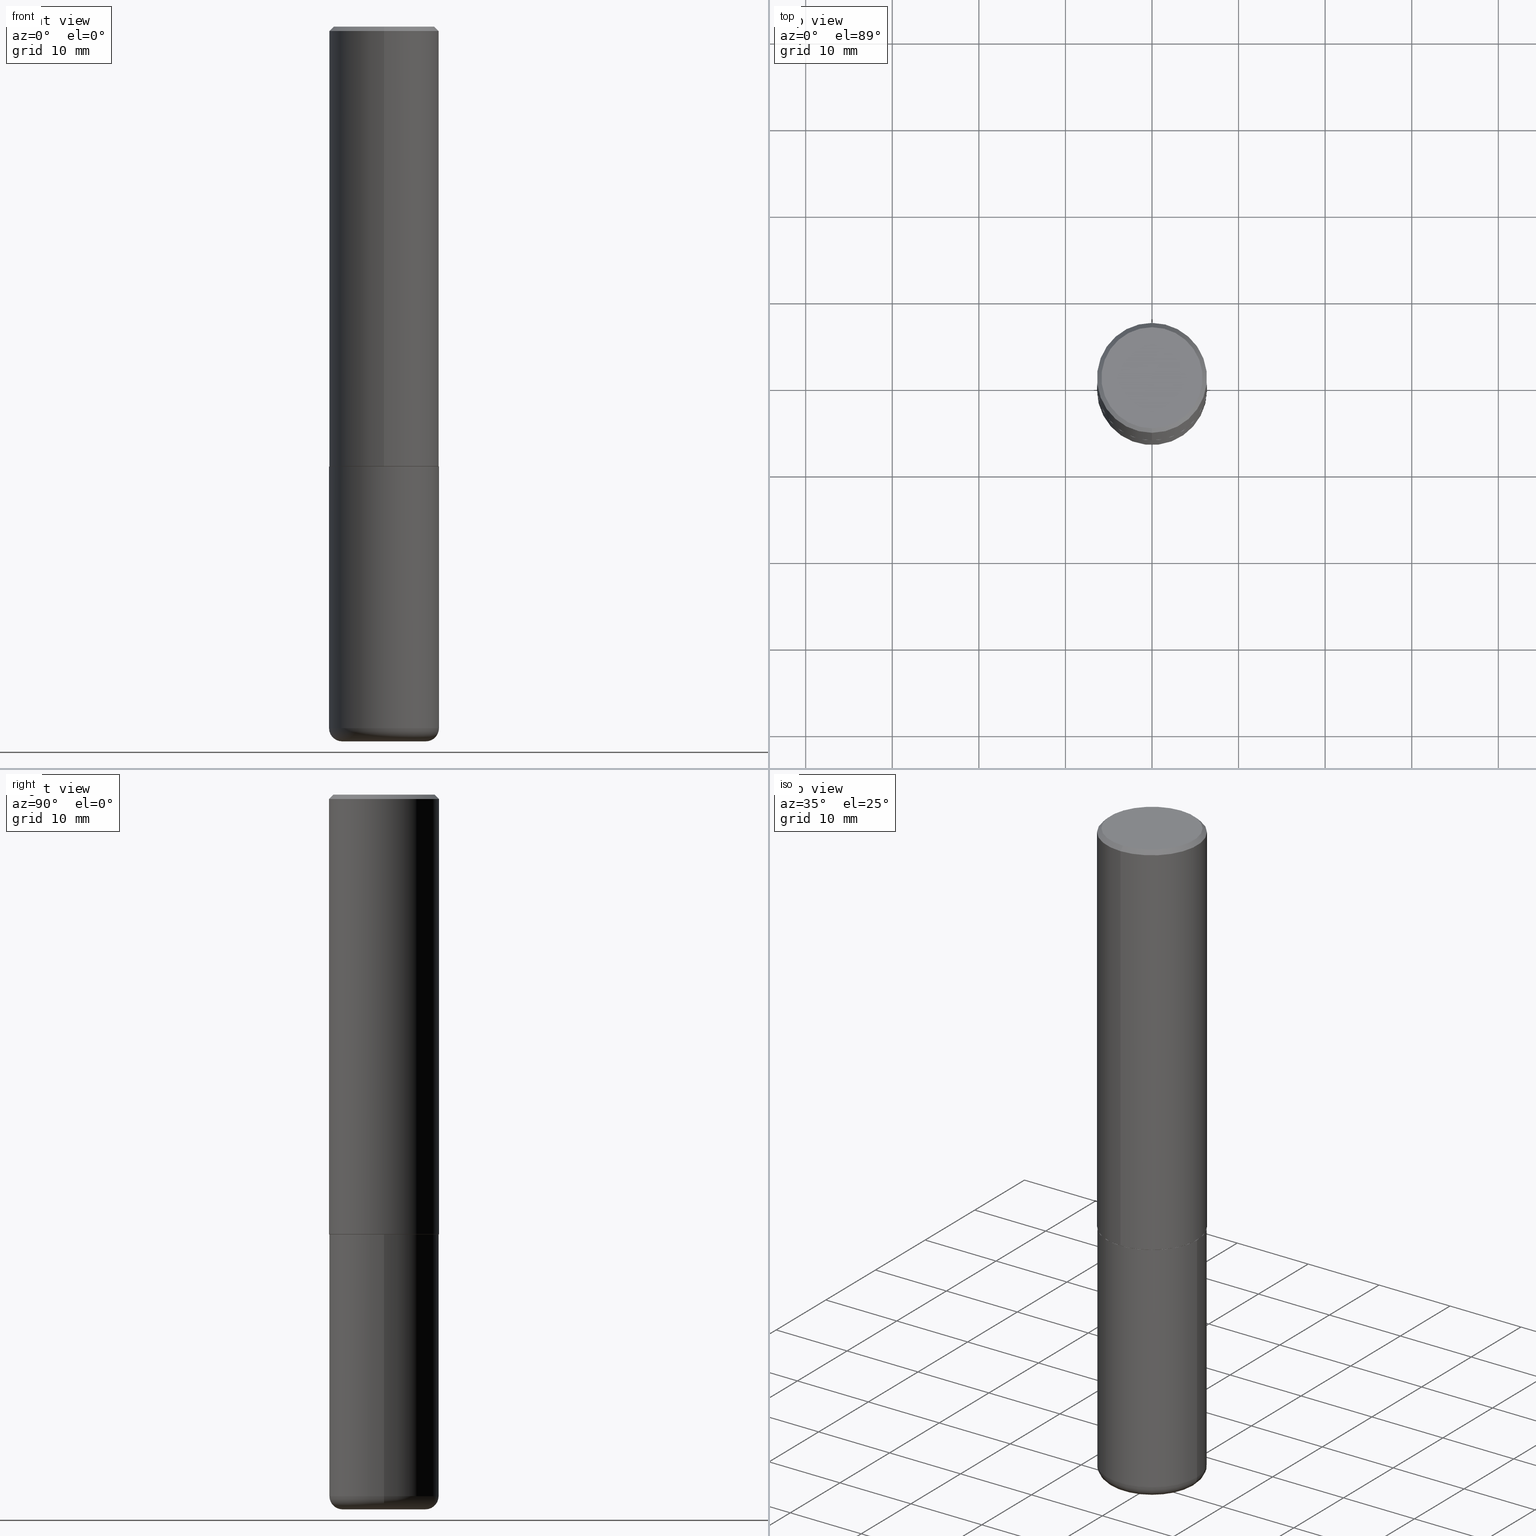
[diagram: canonical four-view strip — front | top / right | iso, engineering-drawing reading convention]
A machine part, canonical four-view strip (front | top / right | iso — engineering-drawing reading convention). The complete STEP part file that produces these views, byte-faithful:
ISO-10303-21;
HEADER;
FILE_DESCRIPTION (( 'STEP AP203' ),
    '1' );
FILE_NAME ('77349.STEP',
    '2024-05-02T19:31:04',
    ( '' ),
    ( '' ),
    'SwSTEP 2.0',
    'SolidWorks 2023',
    '' );
FILE_SCHEMA (( 'CONFIG_CONTROL_DESIGN' ));
ENDSEC;

DATA;
#1 = UNCERTAINTY_MEASURE_WITH_UNIT (LENGTH_MEASURE( 1.000000000000000082E-05 ), #405, 'distance_accuracy_value', 'NONE');
#2 = CARTESIAN_POINT ( 'NONE',  ( 4.890937612370273194E-29, -6.982962677686291165E-15, -2.000000000000000000 ) ) ;
#3 = AXIS2_PLACEMENT_3D ( 'NONE', #361, #229, #287 ) ;
#4 = DIRECTION ( 'NONE',  ( 1.000000000000000000, -6.982962677686274599E-15, 0.000000000000000000 ) ) ;
#5 = DIRECTION ( 'NONE',  ( -2.444078991372175563E-29, 3.493471632758652550E-15, 1.000000000000000000 ) ) ;
#6 = CARTESIAN_POINT ( 'NONE',  ( 1.769251412042697971E-15, 0.2489999999999930047, -2.000000000000000888 ) ) ;
#7 = EDGE_CURVE ( 'NONE', #148, #216, #196, .T. ) ;
#8 = AXIS2_PLACEMENT_3D ( 'NONE', #364, #324, #199 ) ;
#9 = CARTESIAN_POINT ( 'NONE',  ( 7.801045491730585789E-29, -1.113782547090963453E-14, -3.189999999999999947 ) ) ;
#10 = ADVANCED_FACE ( 'NONE', ( #19 ), #117, .F. ) ;
#11 = MECHANICAL_CONTEXT ( 'NONE', #393, 'mechanical' ) ;
#12 = FACE_OUTER_BOUND ( 'NONE', #412, .T. ) ;
#13 = PERSON_AND_ORGANIZATION ( #339, #155 ) ;
#14 = DIRECTION ( 'NONE',  ( -6.982962677686265133E-15, -1.000000000000000000, 3.500180241882336472E-15 ) ) ;
#15 = CONICAL_SURFACE ( 'NONE', #8, 0.2489999999999999991, 0.7853981633975507526 ) ;
#16 = EDGE_CURVE ( 'NONE', #315, #216, #225, .T. ) ;
#17 = PLANE ( 'NONE',  #47 ) ;
#18 = DIRECTION ( 'NONE',  ( 1.000000000000000000, -6.982962677686266711E-15, 0.000000000000000000 ) ) ;
#19 = FACE_OUTER_BOUND ( 'NONE', #158, .T. ) ;
#20 = PRODUCT_RELATED_PRODUCT_CATEGORY ( 'detail', '', ( #409 ) ) ;
#21 = EDGE_CURVE ( 'NONE', #216, #146, #98, .T. ) ;
#22 = AXIS2_PLACEMENT_3D ( 'NONE', #174, #337, #49 ) ;
#23 = CIRCLE ( 'NONE', #311, 0.2500000000000002776 ) ;
#24 = ORIENTED_EDGE ( 'NONE', *, *, #270, .F. ) ;
#25 = DIRECTION ( 'NONE',  ( -6.982962677686265922E-15, -1.000000000000000000, 3.493471632758652550E-15 ) ) ;
#26 = ORIENTED_EDGE ( 'NONE', *, *, #109, .T. ) ;
#27 = EDGE_LOOP ( 'NONE', ( #93, #123, #61, #345 ) ) ;
#28 = AXIS2_PLACEMENT_3D ( 'NONE', #206, #407, #77 ) ;
#29 = ORIENTED_EDGE ( 'NONE', *, *, #321, .F. ) ;
#30 = CARTESIAN_POINT ( 'NONE',  ( 7.801045491730585789E-29, -1.113782547090963453E-14, -3.189999999999999947 ) ) ;
#31 = DIRECTION ( 'NONE',  ( 1.000000000000000000, -6.982962677686261977E-15, 0.000000000000000000 ) ) ;
#32 = LINE ( 'NONE', #366, #378 ) ;
#33 = DATE_TIME_ROLE ( 'creation_date' ) ;
#34 = VECTOR ( 'NONE', #317, 39.37007874015748143 ) ;
#35 = AXIS2_PLACEMENT_3D ( 'NONE', #2, #130, #372 ) ;
#36 = CARTESIAN_POINT ( 'NONE',  ( 0.000000000000000000, 0.000000000000000000, 0.000000000000000000 ) ) ;
#37 = APPROVAL_STATUS ( 'not_yet_approved' ) ;
#38 = CARTESIAN_POINT ( 'NONE',  ( 4.890937612370273194E-29, -6.982962677686291165E-15, -2.000000000000000000 ) ) ;
#39 = EDGE_CURVE ( 'NONE', #315, #180, #82, .T. ) ;
#40 = PLANE ( 'NONE',  #318 ) ;
#41 = AXIS2_PLACEMENT_3D ( 'NONE', #274, #89, #83 ) ;
#42 = AXIS2_PLACEMENT_3D ( 'NONE', #143, #277, #306 ) ;
#43 = DIRECTION ( 'NONE',  ( 1.000000000000000000, -6.982962677686261977E-15, 0.000000000000000000 ) ) ;
#44 = CARTESIAN_POINT ( 'NONE',  ( -1.745740669421567467E-15, -0.2500000000000001110, 8.733679081896635319E-16 ) ) ;
#45 = DIRECTION ( 'NONE',  ( -2.445468806185136597E-29, 3.491481338843145583E-15, 1.000000000000000000 ) ) ;
#46 = AXIS2_PLACEMENT_3D ( 'NONE', #411, #119, #184 ) ;
#47 = AXIS2_PLACEMENT_3D ( 'NONE', #115, #309, #278 ) ;
#48 = CARTESIAN_POINT ( 'NONE',  ( 0.1899999999999999745, -1.267407726000061289E-14, -3.250000000000000000 ) ) ;
#49 = DIRECTION ( 'NONE',  ( 6.982962677686265133E-15, 1.000000000000000000, -3.500180241882336472E-15 ) ) ;
#50 = ORIENTED_EDGE ( 'NONE', *, *, #16, .F. ) ;
#51 = PRODUCT_DEFINITION_SHAPE ( 'NONE', 'NONE',  #157 ) ;
#52 = ORIENTED_EDGE ( 'NONE', *, *, #78, .T. ) ;
#53 = CIRCLE ( 'NONE', #110, 0.1899999999999999745 ) ;
#54 = EDGE_LOOP ( 'NONE', ( #50, #252, #283, #151 ) ) ;
#55 = EDGE_LOOP ( 'NONE', ( #352, #183 ) ) ;
#56 = EDGE_LOOP ( 'NONE', ( #386, #316, #377, #215 ) ) ;
#57 = ORIENTED_EDGE ( 'NONE', *, *, #270, .T. ) ;
#58 = CARTESIAN_POINT ( 'NONE',  ( -1.646519519465166376E-15, -0.2299999999999997047, 1.115557654912385711E-15 ) ) ;
#59 = ORIENTED_EDGE ( 'NONE', *, *, #235, .F. ) ;
#60 = AXIS2_PLACEMENT_3D ( 'NONE', #142, #402, #210 ) ;
#61 = ORIENTED_EDGE ( 'NONE', *, *, #400, .T. ) ;
#62 = CARTESIAN_POINT ( 'NONE',  ( -1.745740669421519543E-15, -0.2500000000000072720, -1.998999999999999000 ) ) ;
#63 = LOCAL_TIME ( 15, 31, 4.000000000000000000, #363 ) ;
#64 = DIRECTION ( 'NONE',  ( -2.444078991372175563E-29, 3.493471632758652550E-15, 1.000000000000000000 ) ) ;
#65 = LINE ( 'NONE', #133, #370 ) ;
#66 = DATE_AND_TIME ( #296, #293 ) ;
#67 = DIRECTION ( 'NONE',  ( -6.982962677686265922E-15, -1.000000000000000000, 3.278217592397112312E-15 ) ) ;
#68 = CONICAL_SURFACE ( 'NONE', #92, 0.2500000000000000555, 0.7853981633974466137 ) ;
#69 = FACE_OUTER_BOUND ( 'NONE', #56, .T. ) ;
#70 = FACE_OUTER_BOUND ( 'NONE', #55, .T. ) ;
#71 = ADVANCED_FACE ( 'NONE', ( #156 ), #147, .T. ) ;
#72 = CARTESIAN_POINT ( 'NONE',  ( 7.801045491730585789E-29, -1.113782547090963453E-14, -3.189999999999999947 ) ) ;
#73 = DIRECTION ( 'NONE',  ( -6.982962677686265133E-15, -1.000000000000000000, 3.500180241882336472E-15 ) ) ;
#74 =( NAMED_UNIT ( * ) PLANE_ANGLE_UNIT ( ) SI_UNIT ( $, .RADIAN. ) );
#75 = CYLINDRICAL_SURFACE ( 'NONE', #28, 0.2500000000000000000 ) ;
#76 = APPLICATION_PROTOCOL_DEFINITION ( 'international standard', 'config_control_design', 1994, #360 ) ;
#77 = DIRECTION ( 'NONE',  ( 1.000000000000000000, -6.982962677686266711E-15, 4.876176775795935793E-29 ) ) ;
#78 = EDGE_CURVE ( 'NONE', #85, #228, #181, .T. ) ;
#79 = ADVANCED_FACE ( 'NONE', ( #161 ), #387, .T. ) ;
#80 = CYLINDRICAL_SURFACE ( 'NONE', #60, 0.2500000000000000000 ) ;
#81 = ORIENTED_EDGE ( 'NONE', *, *, #16, .T. ) ;
#82 = CIRCLE ( 'NONE', #325, 0.2489999999999999991 ) ;
#83 = DIRECTION ( 'NONE',  ( -6.982962677686265133E-15, -1.000000000000000000, 3.291383124896702687E-15 ) ) ;
#84 = TOROIDAL_SURFACE ( 'NONE', #141, 0.1899999999999999745, 0.05999999999999995615 ) ;
#85 = VERTEX_POINT ( 'NONE', #58 ) ;
#86 = ORIENTED_EDGE ( 'NONE', *, *, #247, .T. ) ;
#87 = ORIENTED_EDGE ( 'NONE', *, *, #125, .F. ) ;
#88 = ORIENTED_EDGE ( 'NONE', *, *, #399, .T. ) ;
#89 = DIRECTION ( 'NONE',  ( -2.444078991372175563E-29, 3.493471632758652550E-15, 1.000000000000000000 ) ) ;
#90 = CALENDAR_DATE ( 2024, 2, 5 ) ;
#91 = CC_DESIGN_PERSON_AND_ORGANIZATION_ASSIGNMENT ( #167, #139, ( #111 ) ) ;
#92 = AXIS2_PLACEMENT_3D ( 'NONE', #164, #127, #200 ) ;
#93 = ORIENTED_EDGE ( 'NONE', *, *, #21, .F. ) ;
#94 = DIRECTION ( 'NONE',  ( -2.445468806185136597E-29, 3.491481338843145583E-15, 1.000000000000000000 ) ) ;
#95 = CC_DESIGN_APPROVAL ( #266, ( #111 ) ) ;
#96 = DIRECTION ( 'NONE',  ( 1.000000000000000000, -6.982962677686265133E-15, 4.883557194083112340E-29 ) ) ;
#97 = COORDINATED_UNIVERSAL_TIME_OFFSET ( 5, 0, .BEHIND. ) ;
#98 = LINE ( 'NONE', #401, #34 ) ;
#99 = CARTESIAN_POINT ( 'NONE',  ( 4.888157982744351127E-29, -6.986943265517304311E-15, -2.000000000000000000 ) ) ;
#100 = FACE_OUTER_BOUND ( 'NONE', #124, .T. ) ;
#101 = DESIGN_CONTEXT ( 'detailed design', #360, 'design' ) ;
#102 = APPROVAL_DATE_TIME ( #66, #289 ) ;
#103 = AXIS2_PLACEMENT_3D ( 'NONE', #36, #298, #367 ) ;
#104 = DIRECTION ( 'NONE',  ( -1.000000000000000000, 6.982962677686265922E-15, -4.876176775795935793E-29 ) ) ;
#105 = CARTESIAN_POINT ( 'NONE',  ( 1.675911042644703182E-15, 0.2299999999999997047, -4.914392961565924424E-16 ) ) ;
#106 = CARTESIAN_POINT ( 'NONE',  ( 4.888157982744351127E-29, -6.986943265517304311E-15, -2.000000000000000000 ) ) ;
#107 = DIRECTION ( 'NONE',  ( -2.444078991372175563E-29, 3.493471632758652550E-15, 1.000000000000000000 ) ) ;
#108 = DIMENSIONAL_EXPONENTS ( 1.000000000000000000, 0.000000000000000000, 0.000000000000000000, 0.000000000000000000, 0.000000000000000000, 0.000000000000000000, 0.000000000000000000 ) ;
#109 = EDGE_CURVE ( 'NONE', #384, #185, #342, .T. ) ;
#110 = AXIS2_PLACEMENT_3D ( 'NONE', #258, #94, #31 ) ;
#111 = PRODUCT_DEFINITION_FORMATION_WITH_SPECIFIED_SOURCE ( 'ANY', '', #409, .NOT_KNOWN. ) ;
#112 = DIRECTION ( 'NONE',  ( -2.445468806185136597E-29, 3.491481338843145583E-15, 1.000000000000000000 ) ) ;
#113 = PERSON_AND_ORGANIZATION ( #339, #155 ) ;
#114 = CC_DESIGN_PERSON_AND_ORGANIZATION_ASSIGNMENT ( #263, #128, ( #157 ) ) ;
#115 = CARTESIAN_POINT ( 'NONE',  ( 1.606081415867839095E-15, 0.2299999999999997047, -6.474688858455407103E-16 ) ) ;
#116 = CONICAL_SURFACE ( 'NONE', #22, 0.2500000000000000555, 0.7853981633974466137 ) ;
#117 = PLANE ( 'NONE',  #46 ) ;
#118 = ORIENTED_EDGE ( 'NONE', *, *, #254, .F. ) ;
#119 = DIRECTION ( 'NONE',  ( -2.444078991372175283E-29, 3.493471632758652550E-15, 1.000000000000000000 ) ) ;
#120 = EDGE_LOOP ( 'NONE', ( #381, #288, #375, #188 ) ) ;
#121 = ADVANCED_FACE ( 'NONE', ( #100 ), #15, .T. ) ;
#122 = EDGE_LOOP ( 'NONE', ( #355, #413 ) ) ;
#123 = ORIENTED_EDGE ( 'NONE', *, *, #159, .T. ) ;
#124 = EDGE_LOOP ( 'NONE', ( #351, #81, #218, #356 ) ) ;
#125 = EDGE_CURVE ( 'NONE', #185, #251, #292, .T. ) ;
#126 = CARTESIAN_POINT ( 'NONE',  ( 0.2500000000000000000, -8.728703347107857054E-15, -2.000000000000000000 ) ) ;
#127 = DIRECTION ( 'NONE',  ( 2.444078991372175563E-29, -3.493471632758652550E-15, -1.000000000000000000 ) ) ;
#128 = PERSON_AND_ORGANIZATION_ROLE ( 'creator' ) ;
#129 = AXIS2_PLACEMENT_3D ( 'NONE', #359, #5, #392 ) ;
#130 = DIRECTION ( 'NONE',  ( -2.445468806185136597E-29, 3.491481338843145583E-15, 1.000000000000000000 ) ) ;
#131 = CALENDAR_DATE ( 2024, 2, 5 ) ;
#132 = COORDINATED_UNIVERSAL_TIME_OFFSET ( 5, 0, .BEHIND. ) ;
#133 = CARTESIAN_POINT ( 'NONE',  ( -1.738757706743831360E-15, -0.2490000000000069935, -1.999999999999999112 ) ) ;
#134 = CYLINDRICAL_SURFACE ( 'NONE', #103, 0.2500000000000001110 ) ;
#135 = PERSON_AND_ORGANIZATION ( #339, #155 ) ;
#136 = VECTOR ( 'NONE', #107, 39.37007874015748143 ) ;
#137 = DIRECTION ( 'NONE',  ( -6.982962677686266711E-15, -1.000000000000000000, 3.491481338843145583E-15 ) ) ;
#138 = CARTESIAN_POINT ( 'NONE',  ( -0.2500000000000000000, -7.284037234897712778E-15, -2.000000000000000000 ) ) ;
#139 = PERSON_AND_ORGANIZATION_ROLE ( 'creator' ) ;
#140 = FACE_OUTER_BOUND ( 'NONE', #353, .T. ) ;
#141 = AXIS2_PLACEMENT_3D ( 'NONE', #9, #395, #96 ) ;
#142 = CARTESIAN_POINT ( 'NONE',  ( 0.000000000000000000, 0.000000000000000000, 0.000000000000000000 ) ) ;
#143 = CARTESIAN_POINT ( 'NONE',  ( 0.000000000000000000, 0.000000000000000000, 0.000000000000000000 ) ) ;
#144 = ADVANCED_BREP_SHAPE_REPRESENTATION ( '77349', ( #236, #373, #42 ), #357 ) ;
#145 = CARTESIAN_POINT ( 'NONE',  ( -0.2500000000000000000, 1.776356839400250465E-15, -1.229733772563726445E-29 ) ) ;
#146 = VERTEX_POINT ( 'NONE', #255 ) ;
#147 = TOROIDAL_SURFACE ( 'NONE', #238, 0.1899999999999999745, 0.05999999999999995615 ) ;
#148 = VERTEX_POINT ( 'NONE', #62 ) ;
#149 = ORIENTED_EDGE ( 'NONE', *, *, #344, .F. ) ;
#150 = ORIENTED_EDGE ( 'NONE', *, *, #125, .T. ) ;
#151 = ORIENTED_EDGE ( 'NONE', *, *, #159, .F. ) ;
#152 = COORDINATED_UNIVERSAL_TIME_OFFSET ( 5, 0, .BEHIND. ) ;
#153 = EDGE_LOOP ( 'NONE', ( #211, #26, #24, #118 ) ) ;
#154 = AXIS2_PLACEMENT_3D ( 'NONE', #38, #260, #104 ) ;
#155 = ORGANIZATION ( 'UNSPECIFIED', 'UNSPECIFIED', '' ) ;
#156 = FACE_OUTER_BOUND ( 'NONE', #214, .T. ) ;
#157 = PRODUCT_DEFINITION ( 'UNKNOWN', '', #111, #101 ) ;
#158 = EDGE_LOOP ( 'NONE', ( #29, #284 ) ) ;
#159 = EDGE_CURVE ( 'NONE', #216, #148, #23, .T. ) ;
#160 = APPROVAL_STATUS ( 'not_yet_approved' ) ;
#161 = FACE_OUTER_BOUND ( 'NONE', #27, .T. ) ;
#162 = APPROVAL_STATUS ( 'not_yet_approved' ) ;
#163 = CARTESIAN_POINT ( 'NONE',  ( 1.776356839400276103E-15, 0.2499999999999932832, -1.999000000000000776 ) ) ;
#164 = CARTESIAN_POINT ( 'NONE',  ( 4.888157982744373443E-31, -6.986943265517335816E-17, -0.02000000000000009062 ) ) ;
#165 = CONICAL_SURFACE ( 'NONE', #41, 0.2489999999999999991, 0.7853981633975507526 ) ;
#166 = DIRECTION ( 'NONE',  ( -2.445468806185136597E-29, 3.491481338843145583E-15, 1.000000000000000000 ) ) ;
#167 = PERSON_AND_ORGANIZATION ( #339, #155 ) ;
#168 = CARTESIAN_POINT ( 'NONE',  ( -1.738757706743831360E-15, -0.2490000000000069935, -1.999999999999999112 ) ) ;
#169 = DIRECTION ( 'NONE',  ( -2.445468806185136877E-29, 3.491481338843145188E-15, 1.000000000000000000 ) ) ;
#170 = DIRECTION ( 'NONE',  ( -1.000000000000000000, 6.982962677686265922E-15, -4.876176775795935793E-29 ) ) ;
#171 = SECURITY_CLASSIFICATION ( '', '', #371 ) ;
#172 = CC_DESIGN_PERSON_AND_ORGANIZATION_ASSIGNMENT ( #113, #242, ( #409 ) ) ;
#173 = LINE ( 'NONE', #205, #208 ) ;
#174 = CARTESIAN_POINT ( 'NONE',  ( 4.888157982744373443E-31, -6.986943265517335816E-17, -0.02000000000000009062 ) ) ;
#175 = CLOSED_SHELL ( 'NONE', ( #121, #313, #307, #418, #79, #234, #10, #394 ) ) ;
#176 = AXIS2_PLACEMENT_3D ( 'NONE', #106, #203, #243 ) ;
#177 = FACE_OUTER_BOUND ( 'NONE', #253, .T. ) ;
#178 = CARTESIAN_POINT ( 'NONE',  ( -0.1899999999999999745, -9.679375892402709259E-15, -3.250000000000000000 ) ) ;
#179 =( LENGTH_UNIT ( ) NAMED_UNIT ( * ) SI_UNIT ( $, .METRE. ) );
#180 = VERTEX_POINT ( 'NONE', #168 ) ;
#181 = CIRCLE ( 'NONE', #3, 0.2299999999999997047 ) ;
#182 = APPROVAL_PERSON_ORGANIZATION ( #294, #289, #198 ) ;
#183 = ORIENTED_EDGE ( 'NONE', *, *, #404, .F. ) ;
#184 = DIRECTION ( 'NONE',  ( -6.982962677686265922E-15, -1.000000000000000000, 3.493471632758652550E-15 ) ) ;
#185 = VERTEX_POINT ( 'NONE', #297 ) ;
#186 = EDGE_CURVE ( 'NONE', #180, #148, #65, .T. ) ;
#187 = DIRECTION ( 'NONE',  ( 4.937700262164538576E-15, 0.7071067811865437980, -0.7071067811865511255 ) ) ;
#188 = ORIENTED_EDGE ( 'NONE', *, *, #400, .F. ) ;
#189 = CIRCLE ( 'NONE', #176, 0.2489999999999999991 ) ;
#190 = CC_DESIGN_APPROVAL ( #289, ( #171 ) ) ;
#191 = CALENDAR_DATE ( 2024, 2, 5 ) ;
#192 = DIRECTION ( 'NONE',  ( -2.444078991372175563E-29, 3.493471632758652550E-15, 1.000000000000000000 ) ) ;
#193 = EDGE_CURVE ( 'NONE', #228, #146, #397, .T. ) ;
#194 = DIRECTION ( 'NONE',  ( 7.105427357601001859E-15, 1.000000000000000000, -3.491481338843145583E-15 ) ) ;
#195 = DIRECTION ( 'NONE',  ( -4.937700262165053702E-15, -0.7071067811866175168, 0.7071067811864775177 ) ) ;
#196 = CIRCLE ( 'NONE', #280, 0.2500000000000002776 ) ;
#197 = AXIS2_PLACEMENT_3D ( 'NONE', #302, #137, #4 ) ;
#198 = APPROVAL_ROLE ( '' ) ;
#199 = DIRECTION ( 'NONE',  ( -6.982962677686265133E-15, -1.000000000000000000, 3.291383124896702687E-15 ) ) ;
#200 = DIRECTION ( 'NONE',  ( 6.982962677686265133E-15, 1.000000000000000000, -3.500180241882336472E-15 ) ) ;
#201 = VERTEX_POINT ( 'NONE', #126 ) ;
#202 = APPROVAL ( #162, 'UNSPECIFIED' ) ;
#203 = DIRECTION ( 'NONE',  ( -2.444078991372175563E-29, 3.493471632758652550E-15, 1.000000000000000000 ) ) ;
#204 = LENGTH_MEASURE_WITH_UNIT ( LENGTH_MEASURE( 0.02539999999999999897 ), #179 );
#205 = CARTESIAN_POINT ( 'NONE',  ( -1.715124499442882496E-15, -0.2500000000000001110, -0.01999999999999921632 ) ) ;
#206 = CARTESIAN_POINT ( 'NONE',  ( 0.000000000000000000, 0.000000000000000000, 0.000000000000000000 ) ) ;
#207 = EDGE_CURVE ( 'NONE', #346, #384, #53, .T. ) ;
#208 = VECTOR ( 'NONE', #343, 39.37007874015748854 ) ;
#209 = CARTESIAN_POINT ( 'NONE',  ( 4.888157982744373443E-31, -6.986943265517335816E-17, -0.02000000000000009062 ) ) ;
#210 = DIRECTION ( 'NONE',  ( 1.000000000000000000, -6.982962677686266711E-15, 4.876176775795935793E-29 ) ) ;
#211 = ORIENTED_EDGE ( 'NONE', *, *, #207, .T. ) ;
#212 = CLOSED_SHELL ( 'NONE', ( #406, #240, #308, #331, #71, #275 ) ) ;
#213 = CIRCLE ( 'NONE', #35, 0.2500000000000000000 ) ;
#214 = EDGE_LOOP ( 'NONE', ( #415, #286, #410, #87 ) ) ;
#215 = ORIENTED_EDGE ( 'NONE', *, *, #193, .F. ) ;
#216 = VERTEX_POINT ( 'NONE', #163 ) ;
#217 = EDGE_CURVE ( 'NONE', #201, #379, #213, .T. ) ;
#218 = ORIENTED_EDGE ( 'NONE', *, *, #7, .F. ) ;
#219 = CARTESIAN_POINT ( 'NONE',  ( 4.885713903752978284E-29, -6.983449793884546288E-15, -1.998999999999999888 ) ) ;
#220 = CARTESIAN_POINT ( 'NONE',  ( -7.626972843823584403E-45, 1.090169890898625670E-30, 3.120591793778966343E-16 ) ) ;
#221 = CIRCLE ( 'NONE', #233, 0.2500000000000000000 ) ;
#222 = DATE_AND_TIME ( #90, #380 ) ;
#223 = LOCAL_TIME ( 15, 31, 4.000000000000000000, #97 ) ;
#224 = CARTESIAN_POINT ( 'NONE',  ( 7.801045491730585789E-29, -1.113782547090963453E-14, -3.189999999999999947 ) ) ;
#225 = LINE ( 'NONE', #6, #333 ) ;
#226 = CARTESIAN_POINT ( 'NONE',  ( -1.715124499442882496E-15, -0.2500000000000001110, -0.01999999999999921632 ) ) ;
#227 = CALENDAR_DATE ( 2024, 2, 5 ) ;
#228 = VERTEX_POINT ( 'NONE', #105 ) ;
#229 = DIRECTION ( 'NONE',  ( -2.444078991372175563E-29, 3.493471632758652550E-15, 1.000000000000000000 ) ) ;
#230 = EDGE_CURVE ( 'NONE', #248, #146, #281, .T. ) ;
#231 = PLANE ( 'NONE',  #154 ) ;
#232 = DIRECTION ( 'NONE',  ( -1.000000000000000000, 7.105427357600997914E-15, 0.000000000000000000 ) ) ;
#233 = AXIS2_PLACEMENT_3D ( 'NONE', #303, #45, #18 ) ;
#234 = ADVANCED_FACE ( 'NONE', ( #336 ), #165, .T. ) ;
#235 = EDGE_CURVE ( 'NONE', #228, #85, #347, .T. ) ;
#236 = MANIFOLD_SOLID_BREP ( 'Body-Move/Copy2[1]', #212 ) ;
#237 = CARTESIAN_POINT ( 'NONE',  ( 0.2499999999999999722, -1.288356614033120121E-14, -3.189999999999999947 ) ) ;
#238 = AXIS2_PLACEMENT_3D ( 'NONE', #224, #166, #295 ) ;
#239 = AXIS2_PLACEMENT_3D ( 'NONE', #30, #390, #329 ) ;
#240 = ADVANCED_FACE ( 'NONE', ( #350 ), #84, .T. ) ;
#241 = PERSON_AND_ORGANIZATION_ROLE ( 'classification_officer' ) ;
#242 = PERSON_AND_ORGANIZATION_ROLE ( 'design_owner' ) ;
#243 = DIRECTION ( 'NONE',  ( -6.982962677686265133E-15, -1.000000000000000000, 3.291383124896702687E-15 ) ) ;
#244 = CIRCLE ( 'NONE', #414, 0.2500000000000000555 ) ;
#245 = APPROVAL_PERSON_ORGANIZATION ( #328, #266, #290 ) ;
#246 = LINE ( 'NONE', #44, #136 ) ;
#247 = EDGE_CURVE ( 'NONE', #251, #201, #32, .T. ) ;
#248 = VERTEX_POINT ( 'NONE', #226 ) ;
#249 = EDGE_LOOP ( 'NONE', ( #349, #52 ) ) ;
#250 = ORIENTED_EDGE ( 'NONE', *, *, #193, .T. ) ;
#251 = VERTEX_POINT ( 'NONE', #237 ) ;
#252 = ORIENTED_EDGE ( 'NONE', *, *, #39, .T. ) ;
#253 = EDGE_LOOP ( 'NONE', ( #256, #150, #86, #408 ) ) ;
#254 = EDGE_CURVE ( 'NONE', #346, #251, #388, .T. ) ;
#255 = CARTESIAN_POINT ( 'NONE',  ( 1.745740669421567269E-15, 0.2499999999999999722, -0.02000000000000096492 ) ) ;
#256 = ORIENTED_EDGE ( 'NONE', *, *, #399, .F. ) ;
#257 = APPROVAL_ROLE ( '' ) ;
#258 = CARTESIAN_POINT ( 'NONE',  ( 7.947773620101693940E-29, -1.134731435124022443E-14, -3.250000000000000000 ) ) ;
#259 = AXIS2_PLACEMENT_3D ( 'NONE', #417, #194, #232 ) ;
#260 = DIRECTION ( 'NONE',  ( 2.438088387897960049E-29, -3.491481338843145188E-15, -1.000000000000000000 ) ) ;
#261 = APPROVAL_DATE_TIME ( #391, #266 ) ;
#262 = DIRECTION ( 'NONE',  ( 5.024295867788576727E-15, 0.7071067811866224018, 0.7071067811864726327 ) ) ;
#263 = PERSON_AND_ORGANIZATION ( #339, #155 ) ;
#264 = DATE_TIME_ROLE ( 'classification_date' ) ;
#265 = DIRECTION ( 'NONE',  ( -2.444078991372175563E-29, 3.493471632758652550E-15, 1.000000000000000000 ) ) ;
#266 = APPROVAL ( #37, 'UNSPECIFIED' ) ;
#267 = CARTESIAN_POINT ( 'NONE',  ( 7.947773620101693940E-29, -1.134731435124022443E-14, -3.250000000000000000 ) ) ;
#268 = CIRCLE ( 'NONE', #285, 0.1899999999999999745 ) ;
#269 = CARTESIAN_POINT ( 'NONE',  ( 1.772804125721499462E-15, 0.2489999999999930047, -2.000000000000000888 ) ) ;
#270 = EDGE_CURVE ( 'NONE', #251, #185, #305, .T. ) ;
#271 = LINE ( 'NONE', #145, #334 ) ;
#272 = DIRECTION ( 'NONE',  ( -2.445468806185136877E-29, 3.491481338843145188E-15, 1.000000000000000000 ) ) ;
#273 = AXIS2_PLACEMENT_3D ( 'NONE', #220, #322, #25 ) ;
#274 = CARTESIAN_POINT ( 'NONE',  ( 4.888157982744351127E-29, -6.986943265517304311E-15, -2.000000000000000000 ) ) ;
#275 = ADVANCED_FACE ( 'NONE', ( #70 ), #40, .T. ) ;
#276 = FACE_OUTER_BOUND ( 'NONE', #249, .T. ) ;
#277 = DIRECTION ( 'NONE',  ( 0.000000000000000000, 0.000000000000000000, 1.000000000000000000 ) ) ;
#278 = DIRECTION ( 'NONE',  ( 6.982962677686265922E-15, 1.000000000000000000, -3.493471632758652550E-15 ) ) ;
#279 = CC_DESIGN_DATE_AND_TIME_ASSIGNMENT ( #299, #264, ( #171 ) ) ;
#280 = AXIS2_PLACEMENT_3D ( 'NONE', #219, #64, #310 ) ;
#281 = CIRCLE ( 'NONE', #326, 0.2500000000000000555 ) ;
#282 = CC_DESIGN_APPROVAL ( #202, ( #157 ) ) ;
#283 = ORIENTED_EDGE ( 'NONE', *, *, #186, .T. ) ;
#284 = ORIENTED_EDGE ( 'NONE', *, *, #39, .F. ) ;
#285 = AXIS2_PLACEMENT_3D ( 'NONE', #374, #112, #43 ) ;
#286 = ORIENTED_EDGE ( 'NONE', *, *, #404, .T. ) ;
#287 = DIRECTION ( 'NONE',  ( -6.982962677686265922E-15, -1.000000000000000000, 3.493471632758652550E-15 ) ) ;
#288 = ORIENTED_EDGE ( 'NONE', *, *, #21, .T. ) ;
#289 = APPROVAL ( #160, 'UNSPECIFIED' ) ;
#290 = APPROVAL_ROLE ( '' ) ;
#291 = CARTESIAN_POINT ( 'NONE',  ( 4.885713903752978284E-29, -6.983449793884546288E-15, -1.998999999999999888 ) ) ;
#292 = CIRCLE ( 'NONE', #239, 0.2500000000000000000 ) ;
#293 = LOCAL_TIME ( 15, 31, 4.000000000000000000, #132 ) ;
#294 = PERSON_AND_ORGANIZATION ( #339, #155 ) ;
#295 = DIRECTION ( 'NONE',  ( 1.000000000000000000, -6.982962677686265133E-15, 4.883557194083112340E-29 ) ) ;
#296 = CALENDAR_DATE ( 2024, 2, 5 ) ;
#297 = CARTESIAN_POINT ( 'NONE',  ( -0.2499999999999999722, -9.361468631509382488E-15, -3.189999999999999947 ) ) ;
#298 = DIRECTION ( 'NONE',  ( -2.444078991372175563E-29, 3.493471632758652550E-15, 1.000000000000000000 ) ) ;
#299 = DATE_AND_TIME ( #191, #319 ) ;
#300 = CARTESIAN_POINT ( 'NONE',  ( 4.888157982744373443E-31, -6.986943265517335816E-17, -0.02000000000000009062 ) ) ;
#301 = AXIS2_PLACEMENT_3D ( 'NONE', #72, #327, #398 ) ;
#302 = CARTESIAN_POINT ( 'NONE',  ( 0.1899999999999999745, -1.246458837967002615E-14, -3.189999999999999947 ) ) ;
#303 = CARTESIAN_POINT ( 'NONE',  ( 4.890937612370273194E-29, -6.982962677686291165E-15, -2.000000000000000000 ) ) ;
#304 = PERSON_AND_ORGANIZATION_ROLE ( 'design_supplier' ) ;
#305 = CIRCLE ( 'NONE', #301, 0.2500000000000000000 ) ;
#306 = DIRECTION ( 'NONE',  ( 1.000000000000000000, 0.000000000000000000, 0.000000000000000000 ) ) ;
#307 = ADVANCED_FACE ( 'NONE', ( #69 ), #68, .T. ) ;
#308 = ADVANCED_FACE ( 'NONE', ( #330 ), #231, .F. ) ;
#309 = DIRECTION ( 'NONE',  ( 2.444078991372175283E-29, -3.493471632758652550E-15, -1.000000000000000000 ) ) ;
#310 = DIRECTION ( 'NONE',  ( -6.982962677686265922E-15, -1.000000000000000000, 3.278217592397112312E-15 ) ) ;
#311 = AXIS2_PLACEMENT_3D ( 'NONE', #291, #265, #67 ) ;
#312 = ORIENTED_EDGE ( 'NONE', *, *, #341, .T. ) ;
#313 = ADVANCED_FACE ( 'NONE', ( #362 ), #134, .T. ) ;
#314 = ORIENTED_EDGE ( 'NONE', *, *, #247, .F. ) ;
#315 = VERTEX_POINT ( 'NONE', #269 ) ;
#316 = ORIENTED_EDGE ( 'NONE', *, *, #344, .T. ) ;
#317 = DIRECTION ( 'NONE',  ( -2.444078991372175563E-29, 3.493471632758652550E-15, 1.000000000000000000 ) ) ;
#318 = AXIS2_PLACEMENT_3D ( 'NONE', #267, #332, #170 ) ;
#319 = LOCAL_TIME ( 15, 31, 4.000000000000000000, #152 ) ;
#320 = CARTESIAN_POINT ( 'NONE',  ( 1.745740669421567269E-15, 0.2499999999999999722, -0.02000000000000096492 ) ) ;
#321 = EDGE_CURVE ( 'NONE', #180, #315, #189, .T. ) ;
#322 = DIRECTION ( 'NONE',  ( -2.444078991372175563E-29, 3.493471632758652550E-15, 1.000000000000000000 ) ) ;
#323 = APPROVAL_DATE_TIME ( #222, #202 ) ;
#324 = DIRECTION ( 'NONE',  ( -2.444078991372175563E-29, 3.493471632758652550E-15, 1.000000000000000000 ) ) ;
#325 = AXIS2_PLACEMENT_3D ( 'NONE', #99, #192, #383 ) ;
#326 = AXIS2_PLACEMENT_3D ( 'NONE', #300, #368, #73 ) ;
#327 = DIRECTION ( 'NONE',  ( -2.445468806185136597E-29, 3.491481338843145583E-15, 1.000000000000000000 ) ) ;
#328 = PERSON_AND_ORGANIZATION ( #339, #155 ) ;
#329 = DIRECTION ( 'NONE',  ( 1.000000000000000000, -6.982962677686270655E-15, 0.000000000000000000 ) ) ;
#330 = FACE_OUTER_BOUND ( 'NONE', #122, .T. ) ;
#331 = ADVANCED_FACE ( 'NONE', ( #177 ), #75, .T. ) ;
#332 = DIRECTION ( 'NONE',  ( 2.438088387897960049E-29, -3.491481338843145188E-15, -1.000000000000000000 ) ) ;
#333 = VECTOR ( 'NONE', #262, 39.37007874015748143 ) ;
#334 = VECTOR ( 'NONE', #272, 39.37007874015748143 ) ;
#335 = CC_DESIGN_SECURITY_CLASSIFICATION ( #171, ( #111 ) ) ;
#336 = FACE_OUTER_BOUND ( 'NONE', #54, .T. ) ;
#337 = DIRECTION ( 'NONE',  ( 2.444078991372175563E-29, -3.493471632758652550E-15, -1.000000000000000000 ) ) ;
#338 = APPLICATION_PROTOCOL_DEFINITION ( 'international standard', 'config_control_design', 1994, #393 ) ;
#339 = PERSON ( 'UNSPECIFIED', 'UNSPECIFIED', 'UNSPECIFIED', ('UNSPECIFIED'), ('UNSPECIFIED'), ('UNSPECIFIED') ) ;
#340 = DIRECTION ( 'NONE',  ( -2.444078991372175563E-29, 3.493471632758652550E-15, 1.000000000000000000 ) ) ;
#341 = EDGE_CURVE ( 'NONE', #146, #248, #244, .T. ) ;
#342 = CIRCLE ( 'NONE', #259, 0.05999999999999994227 ) ;
#343 = DIRECTION ( 'NONE',  ( -4.851104656540954809E-15, -0.7071067811865486830, -0.7071067811865462405 ) ) ;
#344 = EDGE_CURVE ( 'NONE', #85, #248, #173, .T. ) ;
#345 = ORIENTED_EDGE ( 'NONE', *, *, #341, .F. ) ;
#346 = VERTEX_POINT ( 'NONE', #48 ) ;
#347 = CIRCLE ( 'NONE', #273, 0.2299999999999997047 ) ;
#348 = ORIENTED_EDGE ( 'NONE', *, *, #217, .F. ) ;
#349 = ORIENTED_EDGE ( 'NONE', *, *, #235, .T. ) ;
#350 = FACE_OUTER_BOUND ( 'NONE', #153, .T. ) ;
#351 = ORIENTED_EDGE ( 'NONE', *, *, #321, .T. ) ;
#352 = ORIENTED_EDGE ( 'NONE', *, *, #207, .F. ) ;
#353 = EDGE_LOOP ( 'NONE', ( #149, #59, #250, #312 ) ) ;
#354 = CC_DESIGN_PERSON_AND_ORGANIZATION_ASSIGNMENT ( #13, #241, ( #171 ) ) ;
#355 = ORIENTED_EDGE ( 'NONE', *, *, #217, .T. ) ;
#356 = ORIENTED_EDGE ( 'NONE', *, *, #186, .F. ) ;
#357 =( GEOMETRIC_REPRESENTATION_CONTEXT ( 3 ) GLOBAL_UNCERTAINTY_ASSIGNED_CONTEXT ( ( #1 ) ) GLOBAL_UNIT_ASSIGNED_CONTEXT ( ( #405, #74, #369 ) ) REPRESENTATION_CONTEXT ( 'NONE', 'WORKASPACE' ) );
#358 = SHAPE_DEFINITION_REPRESENTATION ( #51, #144 ) ;
#359 = CARTESIAN_POINT ( 'NONE',  ( 0.000000000000000000, 0.000000000000000000, 0.000000000000000000 ) ) ;
#360 = APPLICATION_CONTEXT ( 'configuration controlled 3d designs of mechanical parts and assemblies' ) ;
#361 = CARTESIAN_POINT ( 'NONE',  ( -7.626972843823584403E-45, 1.090169890898625670E-30, 3.120591793778966343E-16 ) ) ;
#362 = FACE_OUTER_BOUND ( 'NONE', #120, .T. ) ;
#363 = COORDINATED_UNIVERSAL_TIME_OFFSET ( 5, 0, .BEHIND. ) ;
#364 = CARTESIAN_POINT ( 'NONE',  ( 4.888157982744351127E-29, -6.986943265517304311E-15, -2.000000000000000000 ) ) ;
#365 = VECTOR ( 'NONE', #187, 39.37007874015748854 ) ;
#366 = CARTESIAN_POINT ( 'NONE',  ( 0.2500000000000000000, -1.745740669421566678E-15, 1.219044193948983948E-29 ) ) ;
#367 = DIRECTION ( 'NONE',  ( -6.982962677686266711E-15, -1.000000000000000000, 3.493471632758652550E-15 ) ) ;
#368 = DIRECTION ( 'NONE',  ( -2.444078991372175563E-29, 3.493471632758652550E-15, 1.000000000000000000 ) ) ;
#369 =( NAMED_UNIT ( * ) SI_UNIT ( $, .STERADIAN. ) SOLID_ANGLE_UNIT ( ) );
#370 = VECTOR ( 'NONE', #195, 39.37007874015748143 ) ;
#371 = SECURITY_CLASSIFICATION_LEVEL ( 'unclassified' ) ;
#372 = DIRECTION ( 'NONE',  ( 1.000000000000000000, -6.982962677686266711E-15, 0.000000000000000000 ) ) ;
#373 = MANIFOLD_SOLID_BREP ( 'Body-Move/Copy2[2]', #175 ) ;
#374 = CARTESIAN_POINT ( 'NONE',  ( 7.947773620101693940E-29, -1.134731435124022443E-14, -3.250000000000000000 ) ) ;
#375 = ORIENTED_EDGE ( 'NONE', *, *, #230, .F. ) ;
#376 = EDGE_CURVE ( 'NONE', #379, #201, #221, .T. ) ;
#377 = ORIENTED_EDGE ( 'NONE', *, *, #230, .T. ) ;
#378 = VECTOR ( 'NONE', #169, 39.37007874015748143 ) ;
#379 = VERTEX_POINT ( 'NONE', #138 ) ;
#380 = LOCAL_TIME ( 15, 31, 4.000000000000000000, #385 ) ;
#381 = ORIENTED_EDGE ( 'NONE', *, *, #7, .T. ) ;
#382 = CC_DESIGN_DATE_AND_TIME_ASSIGNMENT ( #396, #33, ( #157 ) ) ;
#383 = DIRECTION ( 'NONE',  ( -6.982962677686265133E-15, -1.000000000000000000, 3.291383124896702687E-15 ) ) ;
#384 = VERTEX_POINT ( 'NONE', #178 ) ;
#385 = COORDINATED_UNIVERSAL_TIME_OFFSET ( 5, 0, .BEHIND. ) ;
#386 = ORIENTED_EDGE ( 'NONE', *, *, #78, .F. ) ;
#387 = CYLINDRICAL_SURFACE ( 'NONE', #129, 0.2500000000000001110 ) ;
#388 = CIRCLE ( 'NONE', #197, 0.05999999999999994227 ) ;
#389 = APPROVAL_PERSON_ORGANIZATION ( #135, #202, #257 ) ;
#390 = DIRECTION ( 'NONE',  ( -2.445468806185136597E-29, 3.491481338843145583E-15, 1.000000000000000000 ) ) ;
#391 = DATE_AND_TIME ( #131, #223 ) ;
#392 = DIRECTION ( 'NONE',  ( -6.982962677686266711E-15, -1.000000000000000000, 3.493471632758652550E-15 ) ) ;
#393 = APPLICATION_CONTEXT ( 'configuration controlled 3d designs of mechanical parts and assemblies' ) ;
#394 = ADVANCED_FACE ( 'NONE', ( #276 ), #17, .F. ) ;
#395 = DIRECTION ( 'NONE',  ( -2.445468806185136597E-29, 3.491481338843145583E-15, 1.000000000000000000 ) ) ;
#396 = DATE_AND_TIME ( #227, #63 ) ;
#397 = LINE ( 'NONE', #320, #365 ) ;
#398 = DIRECTION ( 'NONE',  ( 1.000000000000000000, -6.982962677686270655E-15, 0.000000000000000000 ) ) ;
#399 = EDGE_CURVE ( 'NONE', #185, #379, #271, .T. ) ;
#400 = EDGE_CURVE ( 'NONE', #148, #248, #246, .T. ) ;
#401 = CARTESIAN_POINT ( 'NONE',  ( 1.776356839400251254E-15, 0.2500000000000001110, -8.733679081896635319E-16 ) ) ;
#402 = DIRECTION ( 'NONE',  ( -2.445468806185136597E-29, 3.491481338843145583E-15, 1.000000000000000000 ) ) ;
#403 = PERSON_AND_ORGANIZATION ( #339, #155 ) ;
#404 = EDGE_CURVE ( 'NONE', #384, #346, #268, .T. ) ;
#405 =( CONVERSION_BASED_UNIT ( 'INCH', #204 ) LENGTH_UNIT ( ) NAMED_UNIT ( #108 ) );
#406 = ADVANCED_FACE ( 'NONE', ( #12 ), #80, .T. ) ;
#407 = DIRECTION ( 'NONE',  ( -2.445468806185136597E-29, 3.491481338843145583E-15, 1.000000000000000000 ) ) ;
#408 = ORIENTED_EDGE ( 'NONE', *, *, #376, .F. ) ;
#409 = PRODUCT ( '77349', '77349', '', ( #11 ) ) ;
#410 = ORIENTED_EDGE ( 'NONE', *, *, #254, .T. ) ;
#411 = CARTESIAN_POINT ( 'NONE',  ( 4.888157982744351127E-29, -6.986943265517304311E-15, -2.000000000000000000 ) ) ;
#412 = EDGE_LOOP ( 'NONE', ( #57, #88, #348, #314 ) ) ;
#413 = ORIENTED_EDGE ( 'NONE', *, *, #376, .T. ) ;
#414 = AXIS2_PLACEMENT_3D ( 'NONE', #209, #340, #14 ) ;
#415 = ORIENTED_EDGE ( 'NONE', *, *, #109, .F. ) ;
#416 = CC_DESIGN_PERSON_AND_ORGANIZATION_ASSIGNMENT ( #403, #304, ( #111 ) ) ;
#417 = CARTESIAN_POINT ( 'NONE',  ( -0.1899999999999999745, -9.787794272965444556E-15, -3.189999999999999947 ) ) ;
#418 = ADVANCED_FACE ( 'NONE', ( #140 ), #116, .T. ) ;
ENDSEC;
END-ISO-10303-21;
